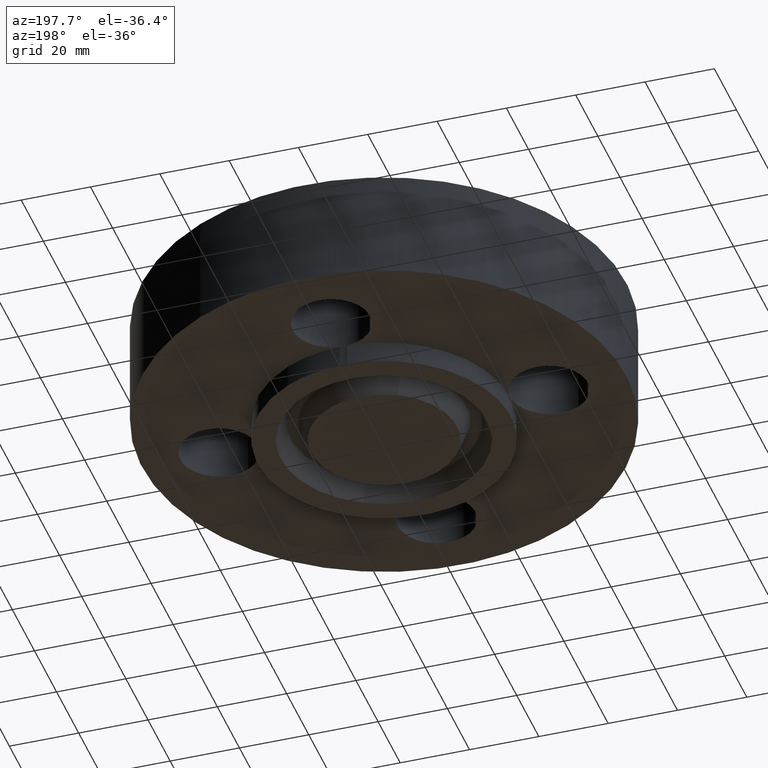
[diagram: clean part render]
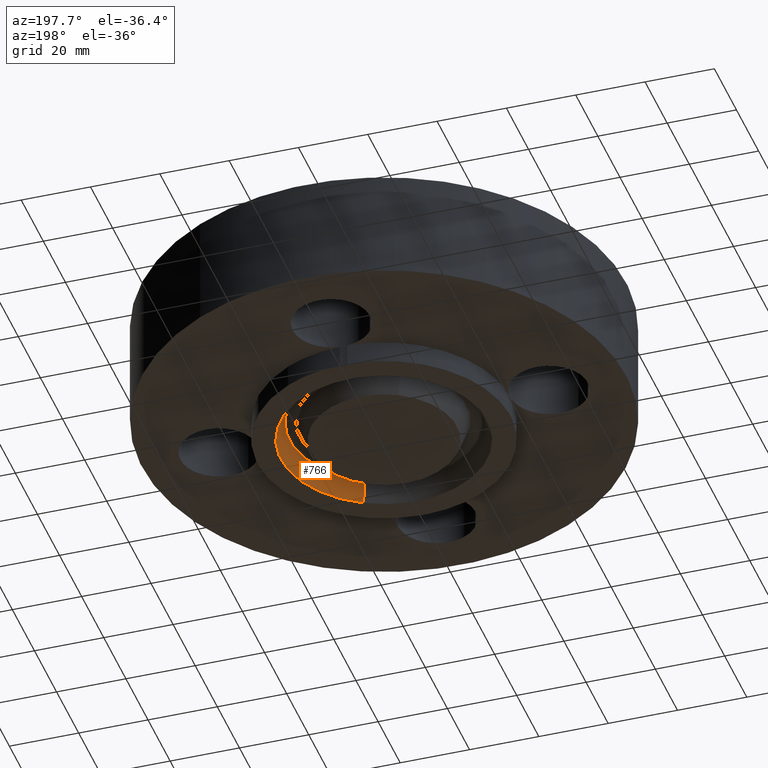
[diagram: same view with one face highlighted and labeled with its STEP entity id]
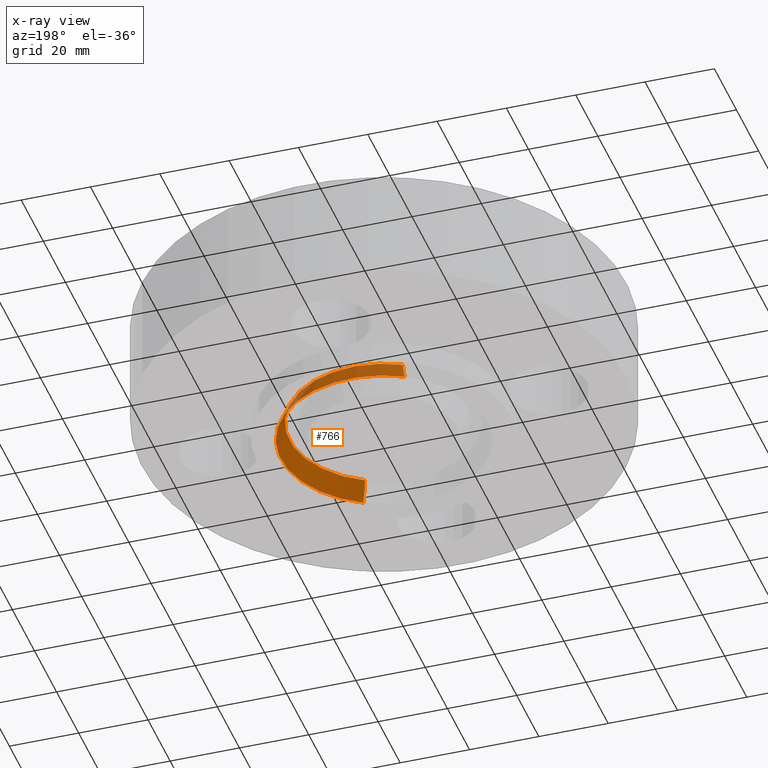
[diagram: x-ray of the same camera — body ghosted, the highlighted face saturated]
A machine part, auxiliary view. The second image highlights one B-rep face of the part: STEP entity #766.
The next image is the same camera in x-ray: the body ghosted, the highlighted face saturated — about 0% of this face is hidden behind the body in this view.
In plain terms, the highlighted conical surface has half-angle 23 deg.
Its self-contained STEP definition (entity closure, byte-faithful):
#152=AXIS2_PLACEMENT_3D('Circle Axis2P3D',#150,#151,$) ;
#701=AXIS2_PLACEMENT_3D('Cone Axis2P3D',#698,#699,#700) ;
#722=AXIS2_PLACEMENT_3D('Circle Axis2P3D',#720,#721,$) ;
#145=CARTESIAN_POINT('Vertex',(0.561886731246,-1.02852676254,-0.250000000001)) ;
#147=CARTESIAN_POINT('Vertex',(-0.561886731246,1.02852676254,-0.250000000001)) ;
#150=CARTESIAN_POINT('Axis2P3D Location',(-1.39870617276E-016,1.39870617276E-016,-0.250000000001)) ;
#667=CARTESIAN_POINT('Vertex',(-0.514854363898,0.942434591585,-0.0188873350169)) ;
#669=CARTESIAN_POINT('Vertex',(0.514854363898,-0.942434591585,-0.0188873350169)) ;
#698=CARTESIAN_POINT('Axis2P3D Location',(0.,0.,-0.0188873350169)) ;
#703=CARTESIAN_POINT('Line Origine',(-0.538370547572,0.985480677062,-0.134443667509)) ;
#708=CARTESIAN_POINT('Line Origine',(0.538370547572,-0.985480677062,-0.134443667509)) ;
#720=CARTESIAN_POINT('Axis2P3D Location',(0.,0.,-0.0188873350169)) ;
#151=DIRECTION('Axis2P3D Direction',(0.,0.,-0.0393700787402)) ;
#699=DIRECTION('Axis2P3D Direction',(-0.,-0.,-0.0393700787402)) ;
#700=DIRECTION('Axis2P3D XDirection',(-0.0188750212049,0.0345504945626,0.)) ;
#704=DIRECTION('Vector Direction',(-0.00737505833565,0.0134999537303,-0.0362403485611)) ;
#709=DIRECTION('Vector Direction',(0.00737505833565,-0.0134999537303,-0.0362403485611)) ;
#721=DIRECTION('Axis2P3D Direction',(0.,0.,0.0393700787402)) ;
#705=VECTOR('Line Direction',#704,0.0393700787402) ;
#710=VECTOR('Line Direction',#709,0.0393700787402) ;
#761=ORIENTED_EDGE('',*,*,#154,.T.) ;
#762=ORIENTED_EDGE('',*,*,#712,.T.) ;
#763=ORIENTED_EDGE('',*,*,#724,.T.) ;
#764=ORIENTED_EDGE('',*,*,#707,.F.) ;
#766=ADVANCED_FACE('PartBody',(#765),#702,.F.) ;
#153=CIRCLE('generated circle',#152,1.172) ;
#723=CIRCLE('generated circle',#722,1.07389849401) ;
#702=CONICAL_SURFACE('Cone',#701,1.07389849401,0.401425727959) ;
#154=EDGE_CURVE('',#148,#146,#153,.T.) ;
#707=EDGE_CURVE('',#148,#668,#706,.F.) ;
#712=EDGE_CURVE('',#146,#670,#711,.F.) ;
#724=EDGE_CURVE('',#670,#668,#723,.T.) ;
#760=EDGE_LOOP('',(#761,#762,#763,#764)) ;
#765=FACE_OUTER_BOUND('',#760,.T.) ;
#706=LINE('Line',#703,#705) ;
#711=LINE('Line',#708,#710) ;
#146=VERTEX_POINT('',#145) ;
#148=VERTEX_POINT('',#147) ;
#668=VERTEX_POINT('',#667) ;
#670=VERTEX_POINT('',#669) ;